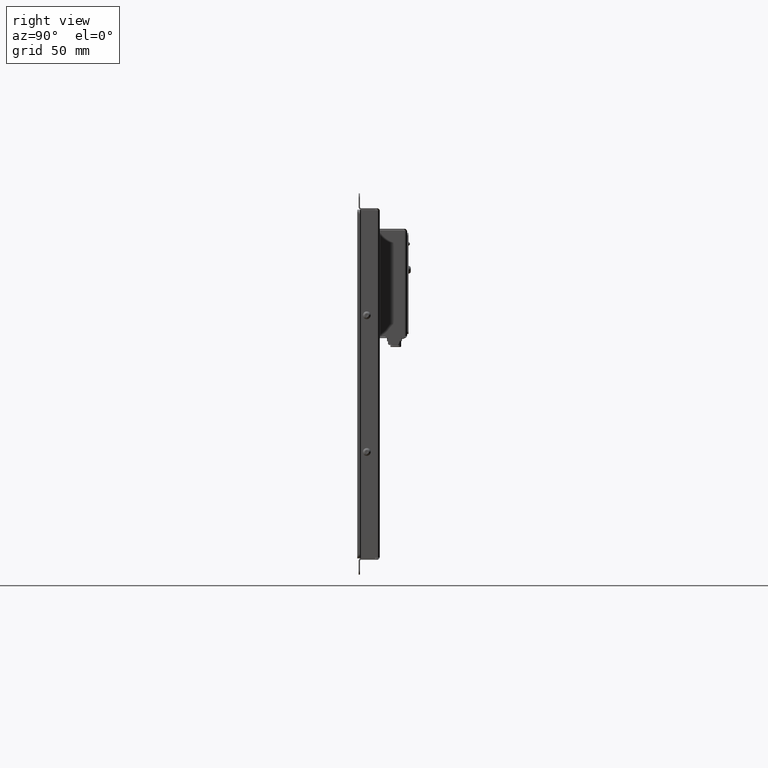
[diagram: clean part render]
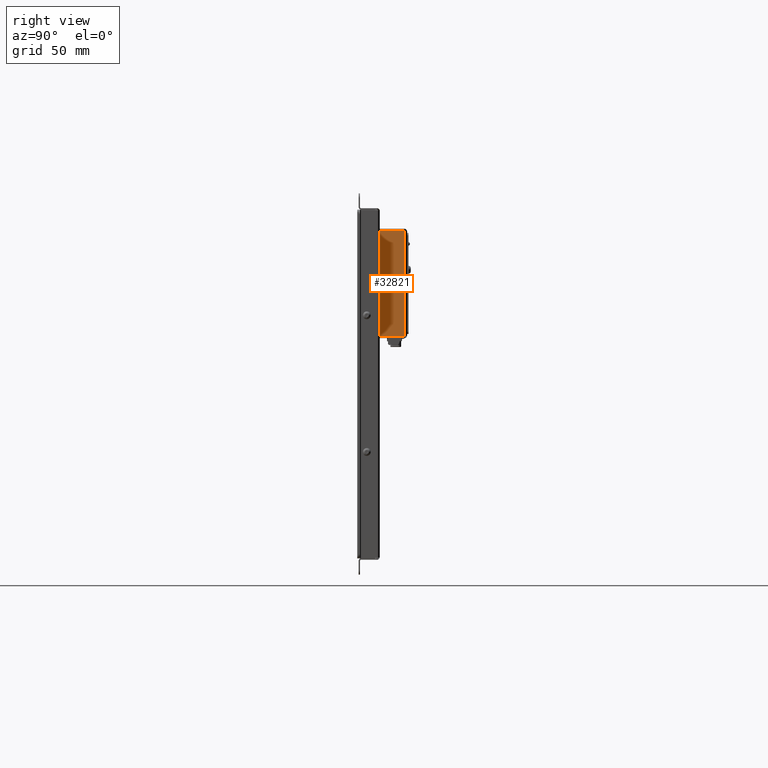
[diagram: same view with one face highlighted and labeled with its STEP entity id]
A machine part, right view. The second image highlights one B-rep face of the part: STEP entity #32821.
In plain terms, the highlighted planar face has unit normal (-1, 0, -0).
Its self-contained STEP definition (entity closure, byte-faithful):
#3191=FACE_OUTER_BOUND('',#5103,.T.);
#5103=EDGE_LOOP('',(#22499,#22500,#22501,#22502));
#7397=LINE('',#49396,#10493);
#7401=LINE('',#49506,#10497);
#7404=LINE('',#49511,#10500);
#7423=LINE('',#49745,#10519);
#10493=VECTOR('',#39528,10.);
#10497=VECTOR('',#39536,10.);
#10500=VECTOR('',#39541,10.);
#10519=VECTOR('',#39574,10.);
#13603=VERTEX_POINT('',#49289);
#13613=VERTEX_POINT('',#49394);
#13617=VERTEX_POINT('',#49505);
#13618=VERTEX_POINT('',#49509);
#17020=EDGE_CURVE('',#13613,#13603,#7397,.T.);
#17029=EDGE_CURVE('',#13613,#13617,#7401,.T.);
#17032=EDGE_CURVE('',#13617,#13618,#7404,.T.);
#17060=EDGE_CURVE('',#13618,#13603,#7423,.T.);
#22499=ORIENTED_EDGE('',*,*,#17060,.T.);
#22500=ORIENTED_EDGE('',*,*,#17020,.F.);
#22501=ORIENTED_EDGE('',*,*,#17029,.T.);
#22502=ORIENTED_EDGE('',*,*,#17032,.T.);
#30392=PLANE('',#35376);
#32821=ADVANCED_FACE('',(#3191),#30392,.F.);
#35376=AXIS2_PLACEMENT_3D('',#49747,#39576,#39577);
#39528=DIRECTION('',(9.86864910777917E-16,1.72701359386135E-15,-1.));
#39536=DIRECTION('',(0.,-1.,0.));
#39541=DIRECTION('',(2.96059473233375E-15,-1.72701359386135E-15,-1.));
#39574=DIRECTION('',(-4.13586793642697E-18,1.,-7.09352842422617E-33));
#39576=DIRECTION('center_axis',(-1.,-4.13586793642697E-18,-1.33297297823392E-15));
#39577=DIRECTION('ref_axis',(-1.33297297823392E-15,0.,1.));
#49289=CARTESIAN_POINT('',(84.,38.9,2.00000000000002));
#49394=CARTESIAN_POINT('',(84.,38.9,20.));
#49396=CARTESIAN_POINT('',(84.,38.9,2.00000000000001));
#49505=CARTESIAN_POINT('',(84.,-38.9,20.));
#49506=CARTESIAN_POINT('',(84.,407.46178996699,20.));
#49509=CARTESIAN_POINT('',(84.,-38.9,2.00000000000002));
#49511=CARTESIAN_POINT('',(84.,-38.9,2.00000000000001));
#49745=CARTESIAN_POINT('',(84.,3.02547354640577E-14,2.00000000000001));
#49747=CARTESIAN_POINT('Origin',(84.,2.4980018054066E-14,9.86902664470767));